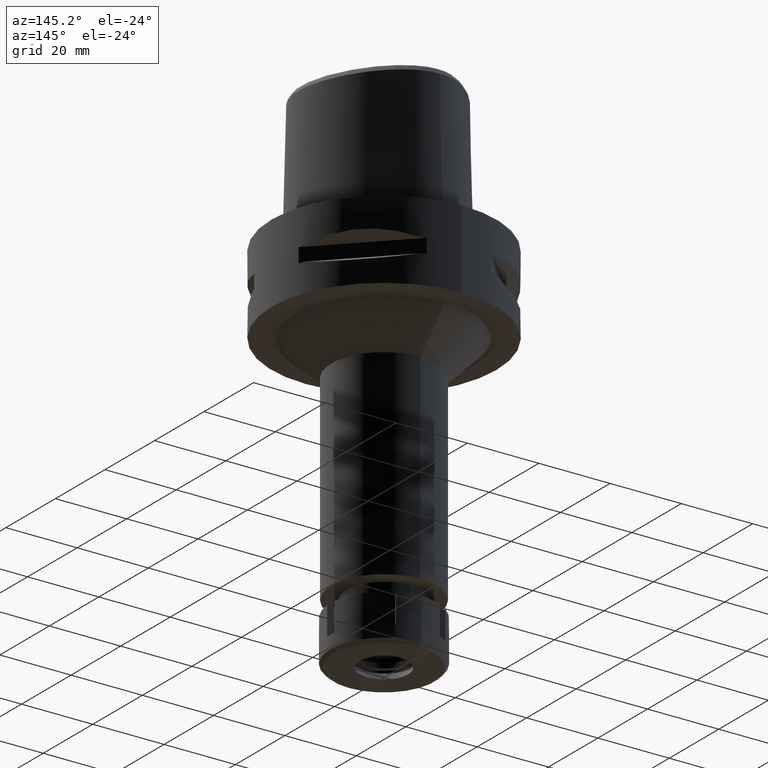
[diagram: clean part render]
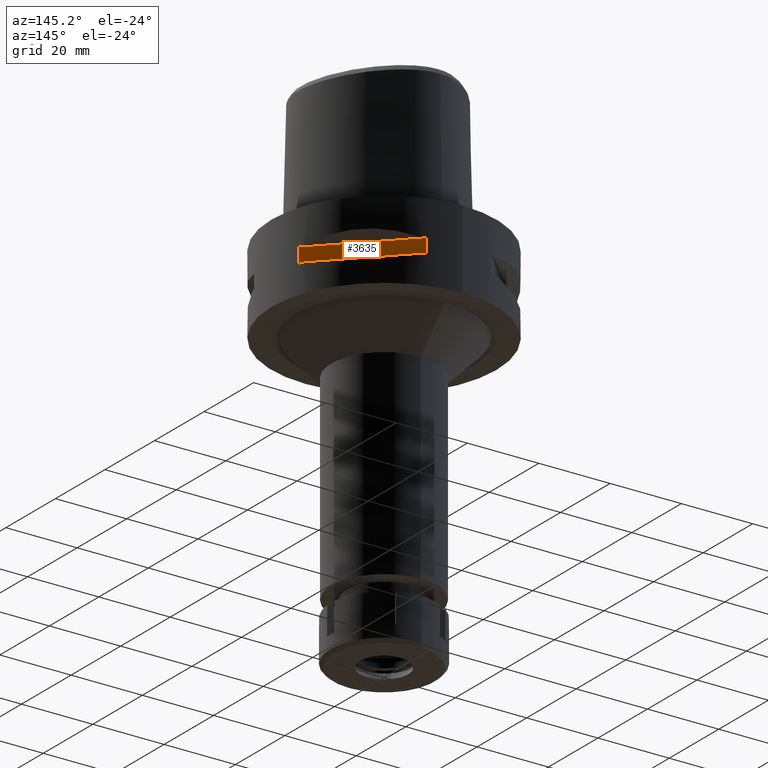
[diagram: same view with one face highlighted and labeled with its STEP entity id]
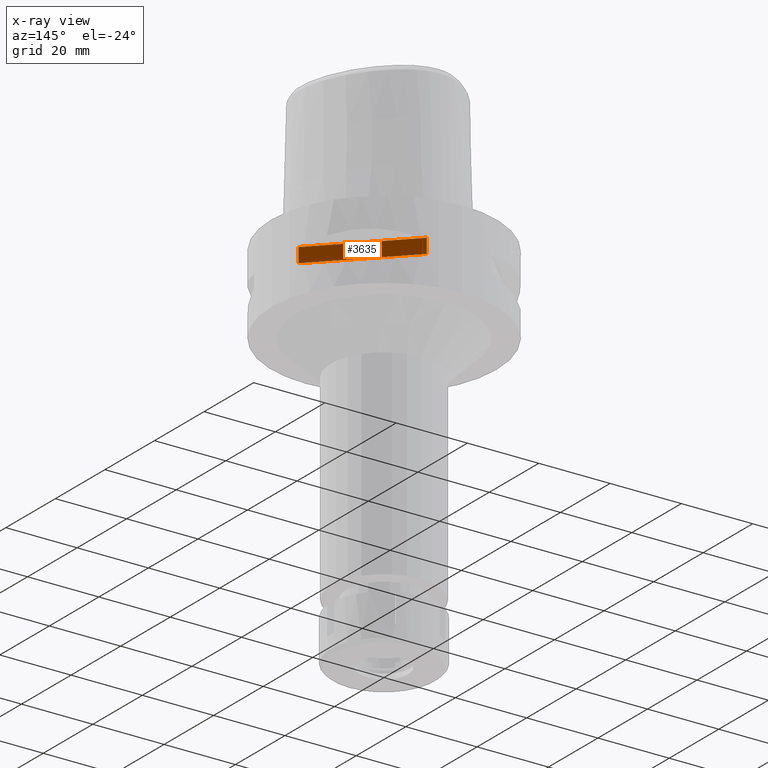
[diagram: x-ray of the same camera — body ghosted, the highlighted face saturated]
A machine part, auxiliary view. The second image highlights one B-rep face of the part: STEP entity #3635.
The next image is the same camera in x-ray: the body ghosted, the highlighted face saturated — about 0% of this face is hidden behind the body in this view.
In plain terms, the highlighted planar face has unit normal (-0.7071, -0.7071, 0).
Its self-contained STEP definition (entity closure, byte-faithful):
#274 = EDGE_CURVE ( 'NONE', #3172, #2583, #5149, .T. ) ;
#382 = PLANE ( 'NONE',  #949 ) ;
#505 = DIRECTION ( 'NONE',  ( 0.0000000000000000000, 0.0000000000000000000, 1.000000000000000000 ) ) ;
#517 = VECTOR ( 'NONE', #4071, 1000.000000000000000 ) ;
#602 = LINE ( 'NONE', #4913, #517 ) ;
#669 = ORIENTED_EDGE ( 'NONE', *, *, #274, .T. ) ;
#728 = EDGE_CURVE ( 'NONE', #4003, #3172, #3741, .T. ) ;
#878 = CARTESIAN_POINT ( 'NONE',  ( 30.19251670572000279, 8.981198972019999616, -9.950000000000001066 ) ) ;
#949 = AXIS2_PLACEMENT_3D ( 'NONE', #3365, #5085, #2919 ) ;
#1059 = EDGE_CURVE ( 'NONE', #5132, #4003, #602, .T. ) ;
#1150 = LINE ( 'NONE', #4212, #2231 ) ;
#1352 = CARTESIAN_POINT ( 'NONE',  ( 8.981198972017999438, 30.19251670572000279, -14.05000000000000071 ) ) ;
#1604 = DIRECTION ( 'NONE',  ( -0.7071067811865474617, 0.7071067811865474617, 0.0000000000000000000 ) ) ;
#1655 = FACE_OUTER_BOUND ( 'NONE', #3061, .T. ) ;
#1728 = CARTESIAN_POINT ( 'NONE',  ( 8.981198972019999616, 30.19251670572000279, -14.05000000000000071 ) ) ;
#1806 = EDGE_CURVE ( 'NONE', #5132, #2583, #1150, .T. ) ;
#2231 = VECTOR ( 'NONE', #2861, 1000.000000000000114 ) ;
#2583 = VERTEX_POINT ( 'NONE', #5410 ) ;
#2672 = VECTOR ( 'NONE', #505, 1000.000000000000000 ) ;
#2861 = DIRECTION ( 'NONE',  ( -0.7071067811865474617, 0.7071067811865474617, 0.0000000000000000000 ) ) ;
#2919 = DIRECTION ( 'NONE',  ( -0.7071067811865475727, 0.7071067811865475727, 0.0000000000000000000 ) ) ;
#2948 = VECTOR ( 'NONE', #1604, 1000.000000000000114 ) ;
#3017 = ORIENTED_EDGE ( 'NONE', *, *, #1059, .T. ) ;
#3061 = EDGE_LOOP ( 'NONE', ( #5067, #3017, #4625, #669 ) ) ;
#3172 = VERTEX_POINT ( 'NONE', #1728 ) ;
#3365 = CARTESIAN_POINT ( 'NONE',  ( 5.444722215136000187, 33.72899346260000186, -9.950000000000001066 ) ) ;
#3635 = ADVANCED_FACE ( 'NONE', ( #1655 ), #382, .F. ) ;
#3741 = LINE ( 'NONE', #5459, #2948 ) ;
#4003 = VERTEX_POINT ( 'NONE', #5482 ) ;
#4071 = DIRECTION ( 'NONE',  ( 0.0000000000000000000, 0.0000000000000000000, -1.000000000000000000 ) ) ;
#4212 = CARTESIAN_POINT ( 'NONE',  ( 30.19251670572000279, 8.981198972017999438, -9.950000000000001066 ) ) ;
#4625 = ORIENTED_EDGE ( 'NONE', *, *, #728, .T. ) ;
#4913 = CARTESIAN_POINT ( 'NONE',  ( 30.19251670572000279, 8.981198972017999438, -9.950000000000001066 ) ) ;
#5067 = ORIENTED_EDGE ( 'NONE', *, *, #1806, .F. ) ;
#5085 = DIRECTION ( 'NONE',  ( -0.7071067811865475727, -0.7071067811865475727, 0.0000000000000000000 ) ) ;
#5132 = VERTEX_POINT ( 'NONE', #878 ) ;
#5149 = LINE ( 'NONE', #1352, #2672 ) ;
#5410 = CARTESIAN_POINT ( 'NONE',  ( 8.981198972017999438, 30.19251670572000279, -9.950000000000001066 ) ) ;
#5459 = CARTESIAN_POINT ( 'NONE',  ( 30.19251670572000279, 8.981198972017999438, -14.05000000000000071 ) ) ;
#5482 = CARTESIAN_POINT ( 'NONE',  ( 30.19251670572000279, 8.981198972017999438, -14.05000000000000071 ) ) ;